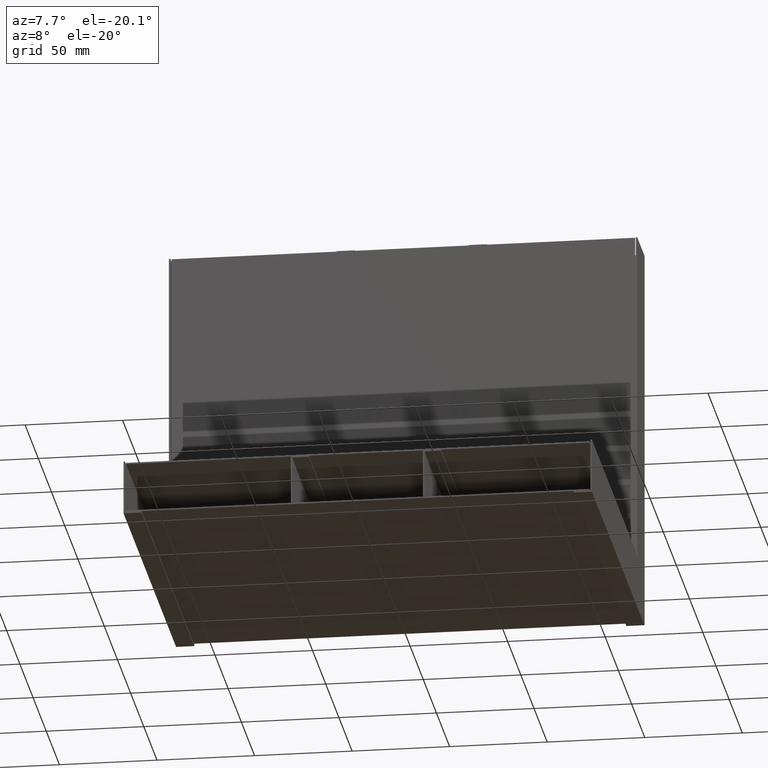
[diagram: clean part render]
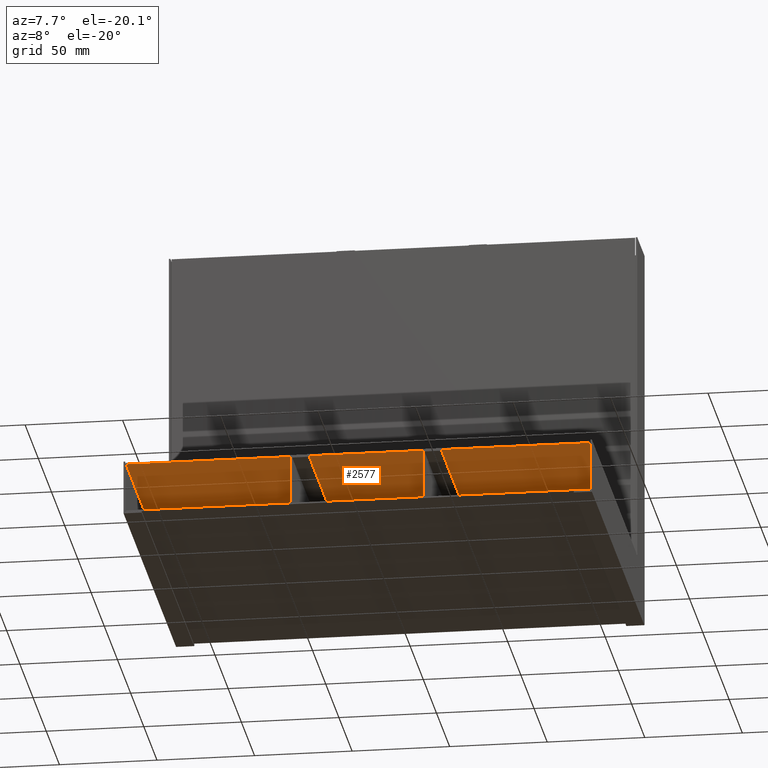
[diagram: same view with one face highlighted and labeled with its STEP entity id]
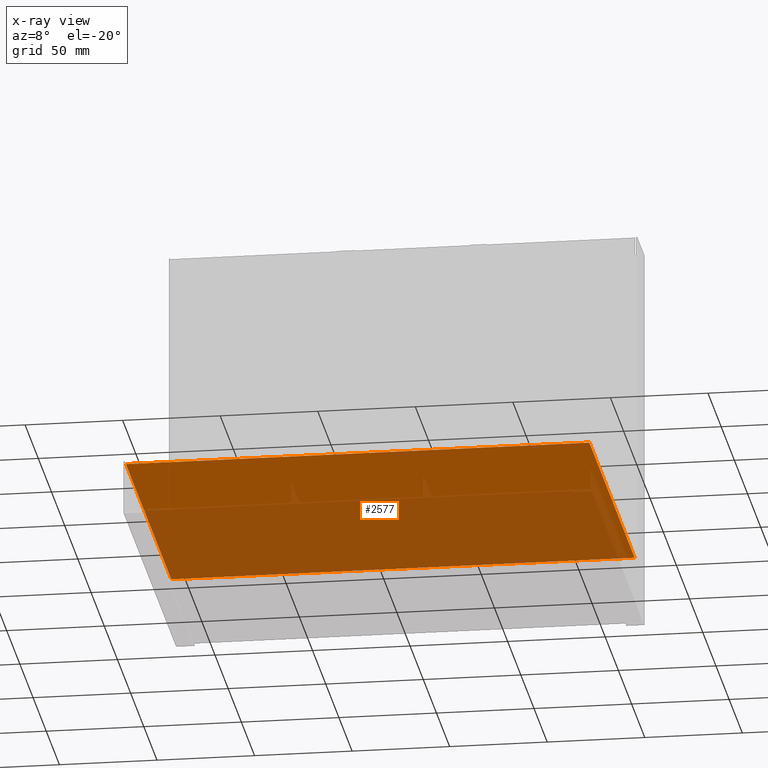
[diagram: x-ray of the same camera — body ghosted, the highlighted face saturated]
A machine part, auxiliary view. The second image highlights one B-rep face of the part: STEP entity #2577.
The next image is the same camera in x-ray: the body ghosted, the highlighted face saturated — about 60% of this face is hidden behind the body in this view.
In plain terms, the highlighted planar face has unit normal (0, 0, 1).
Its self-contained STEP definition (entity closure, byte-faithful):
#2286=DIRECTION('',(0.E0,-1.E0,0.E0));
#2287=VECTOR('',#2286,1.717200775253E2);
#2288=CARTESIAN_POINT('',(1.1875E2,-1.079922474671E0,0.E0));
#2289=LINE('',#2288,#2287);
#2372=DIRECTION('',(-1.E0,0.E0,0.E0));
#2373=VECTOR('',#2372,2.375E2);
#2374=CARTESIAN_POINT('',(1.1875E2,-1.728E2,0.E0));
#2375=LINE('',#2374,#2373);
#2386=DIRECTION('',(1.E0,0.E0,0.E0));
#2387=VECTOR('',#2386,2.375E2);
#2388=CARTESIAN_POINT('',(-1.1875E2,-1.079922474671E0,0.E0));
#2389=LINE('',#2388,#2387);
#2407=DIRECTION('',(0.E0,1.E0,0.E0));
#2408=VECTOR('',#2407,1.717200775253E2);
#2409=CARTESIAN_POINT('',(-1.1875E2,-1.728E2,0.E0));
#2410=LINE('',#2409,#2408);
#2450=CARTESIAN_POINT('',(1.1875E2,-1.728E2,0.E0));
#2451=CARTESIAN_POINT('',(-1.1875E2,-1.728E2,0.E0));
#2452=VERTEX_POINT('',#2450);
#2453=VERTEX_POINT('',#2451);
#2458=CARTESIAN_POINT('',(-1.1875E2,-1.079922474671E0,0.E0));
#2459=CARTESIAN_POINT('',(1.1875E2,-1.079922474671E0,0.E0));
#2460=VERTEX_POINT('',#2458);
#2461=VERTEX_POINT('',#2459);
#2564=CARTESIAN_POINT('',(-1.1875E2,-1.728E2,0.E0));
#2565=DIRECTION('',(0.E0,0.E0,1.E0));
#2566=DIRECTION('',(1.E0,0.E0,0.E0));
#2567=AXIS2_PLACEMENT_3D('',#2564,#2565,#2566);
#2568=PLANE('',#2567);
#2570=ORIENTED_EDGE('',*,*,#2569,.F.);
#2572=ORIENTED_EDGE('',*,*,#2571,.F.);
#2573=ORIENTED_EDGE('',*,*,#2555,.F.);
#2574=ORIENTED_EDGE('',*,*,#2496,.F.);
#2575=EDGE_LOOP('',(#2570,#2572,#2573,#2574));
#2576=FACE_OUTER_BOUND('',#2575,.F.);
#2496=EDGE_CURVE('',#2461,#2452,#2289,.T.);
#2555=EDGE_CURVE('',#2452,#2453,#2375,.T.);
#2569=EDGE_CURVE('',#2460,#2461,#2389,.T.);
#2571=EDGE_CURVE('',#2453,#2460,#2410,.T.);
#2577=ADVANCED_FACE('',(#2576),#2568,.F.);